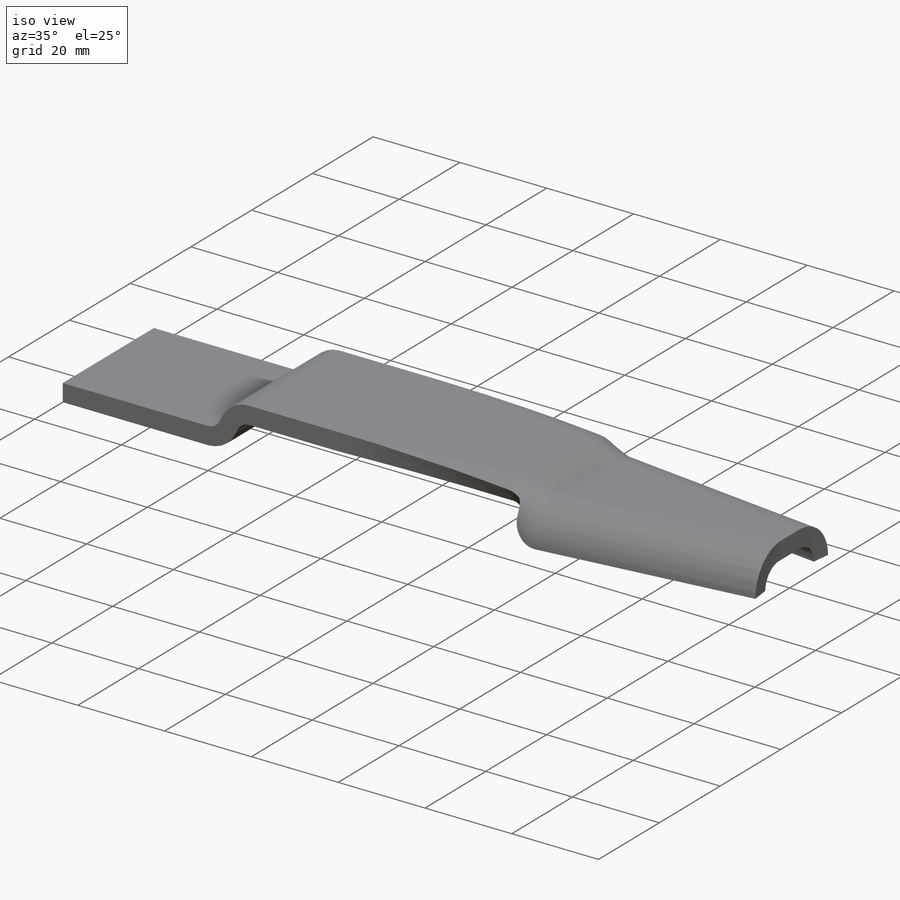
[diagram: iso view]
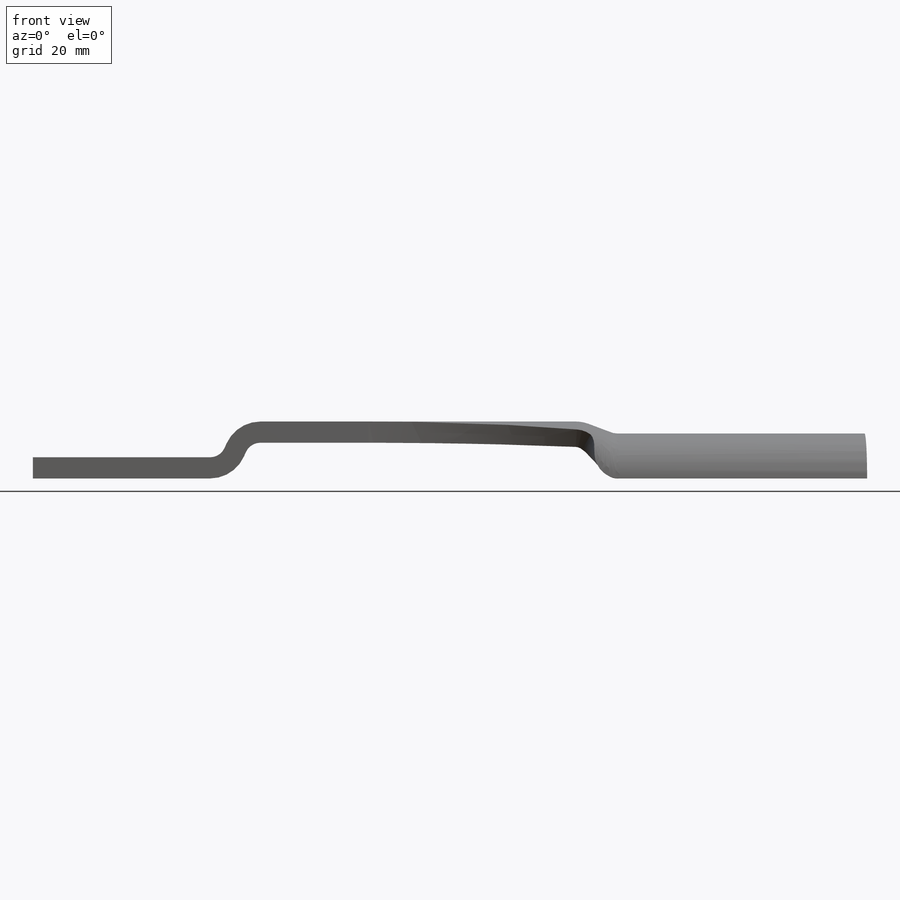
[diagram: front view]
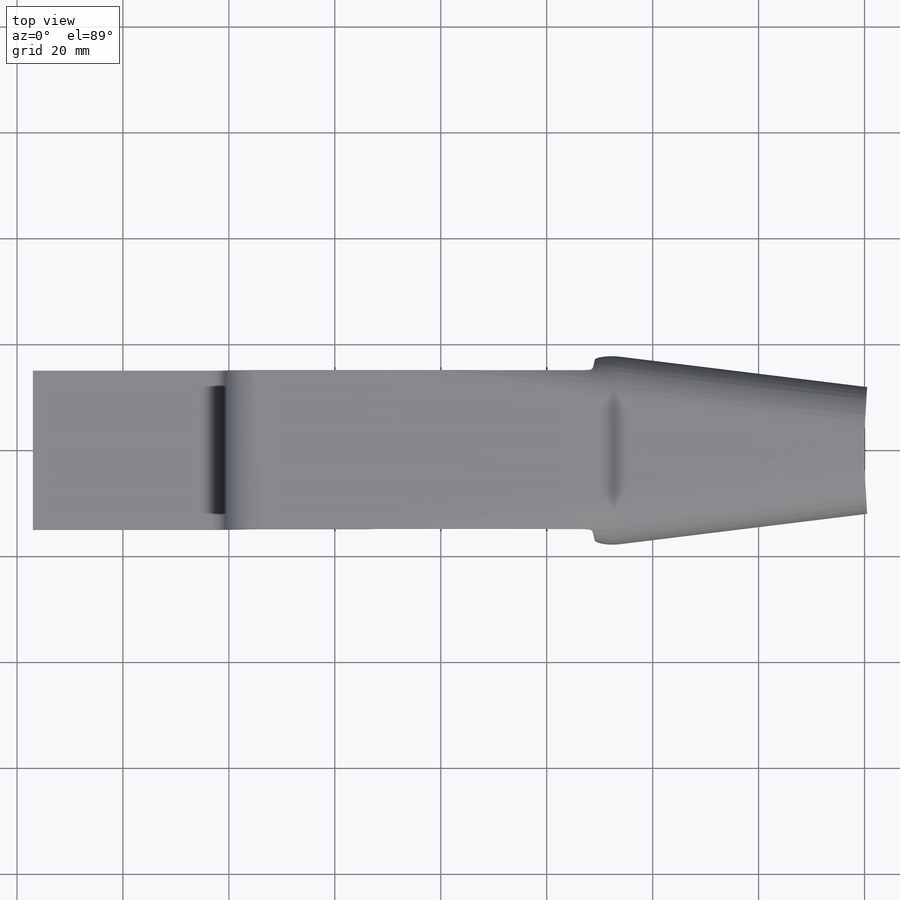
[diagram: top view]
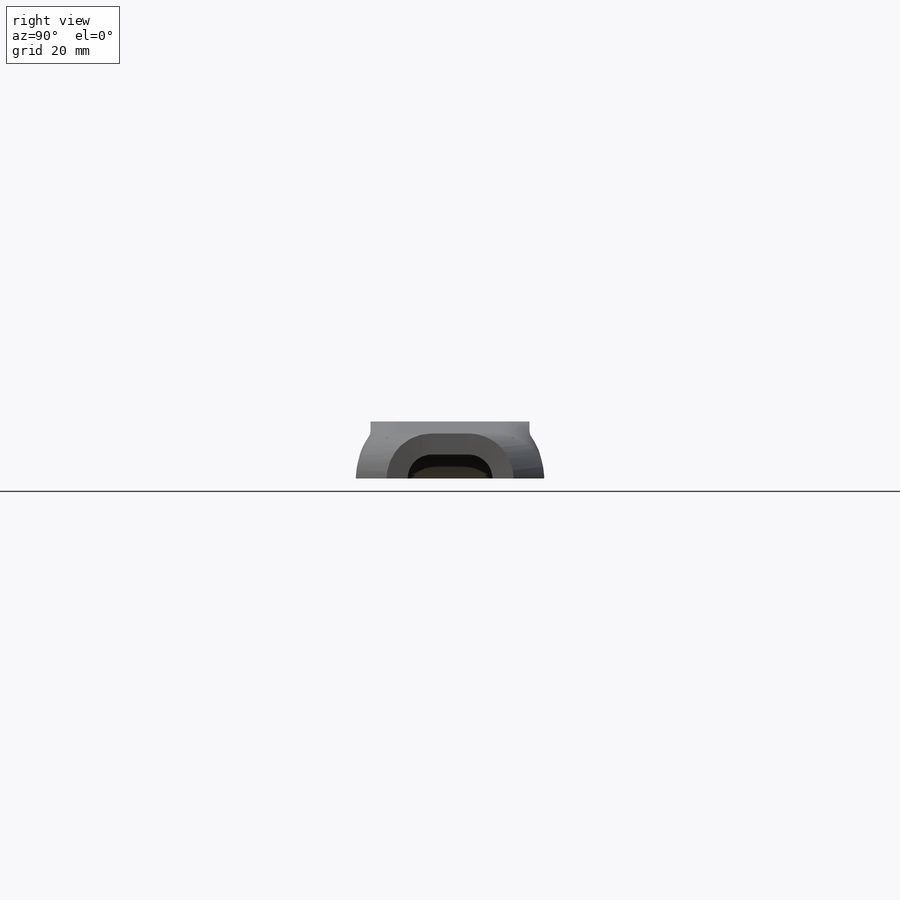
[diagram: right view]
SOLIDWORKS PART (.sldprt)
format: sldprt  version: not decoded by parser v0  size: 407,040 bytes
history: native  units: mm
features: sketch x5, plane x3, surface_op x2, fillet x2, material x1, mirror x1 (+9 scaffold rows collapsed)
feature tree (23):
  scaffold x9  (default folders/planes/origin — collapsed)
  material  "Material <nicht festgelegt>"
  plane  "Ebene vorne"
  plane  "Ebene oben"
  plane  "Ebene rechts"
  sketch  "Skizze Längs"  dims[c1.D1=38.0mm c1.D2=3.0mm c1.D3=6.0mm c1.D4=48.0mm c1.D5=157.0mm c1.D6=6.75mm c1.D7=~75.834957mm c2.D6=6.75mm c2.D7=4.5mm c2.D5=157.0mm]
  sketch  "Skizze Oben"  dims[c1.D1=48.0mm c2.D1=14.0deg c2.D2=16.0mm c3.D1=48.0mm c4.D1=7.0deg c4.D2=7.0mm]
  surface_op  "Oberfläche-Linear austragen1"
  fillet  "Verrundung1"  Radius=7mm
  fillet  "Verrundung2"  Radius=3mm
  sketch  "Skizze3"  dims[D1=4.5mm]
  sketch  "Skizze7"  dims[c1.D1=~20.390397mm c2.D1=3.3deg]
  surface_op  "Oberfläche-Trimmen5"
  sketch  "Skizze8"  dims[c1.D1=3.0mm c1.D2=7.0mm c2.D1=~0.054435mm c3.D1=4.0mm]
  mirror  "Spiegeln1"
decode coverage: 7 of 10 modeling features carry decoded parameters
note: ~ marks probable driven/reference dimensions
note: suppression state not decoded; provenance and decode notes live in map.json
